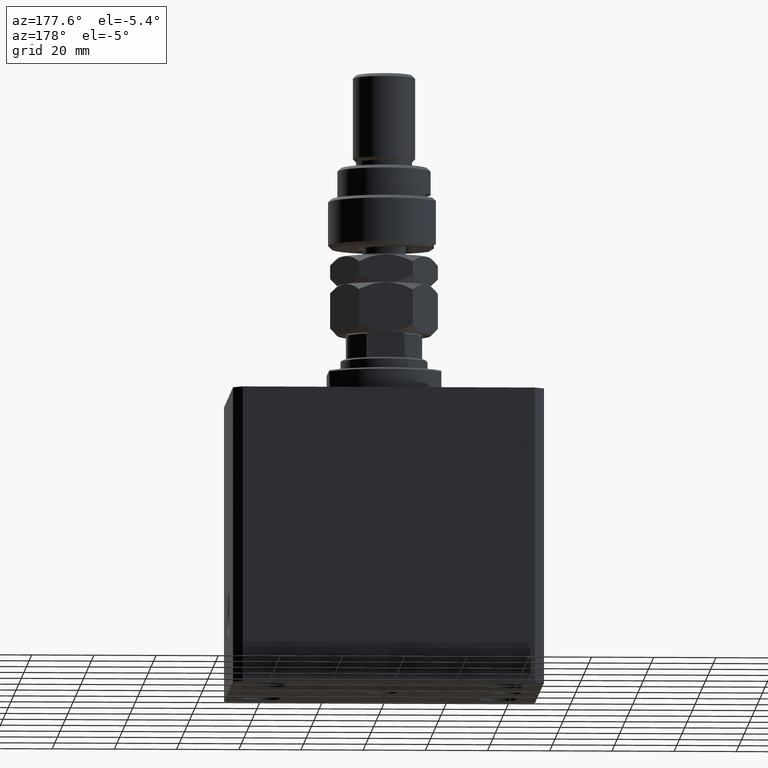
[diagram: clean part render]
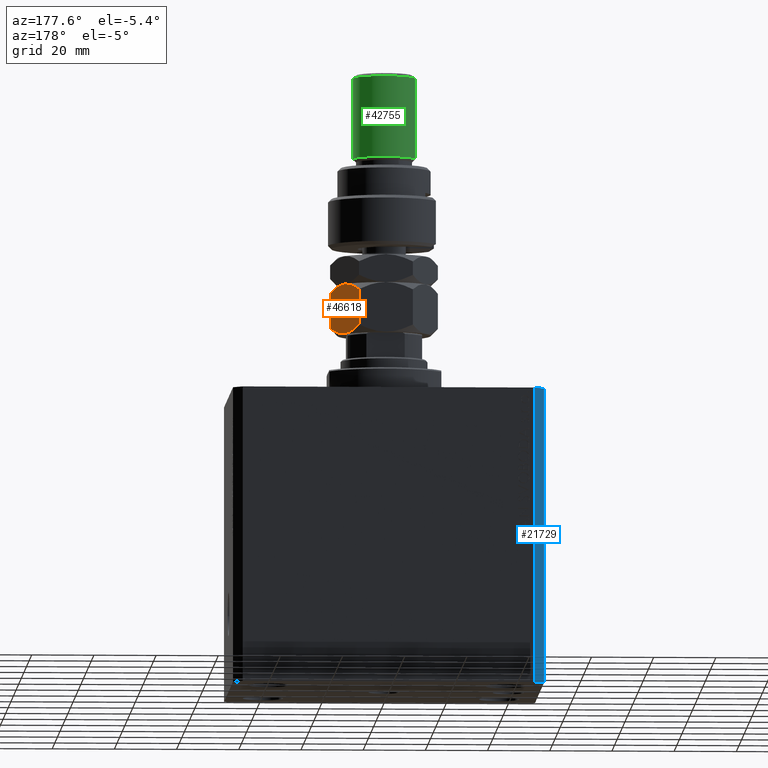
[diagram: same view with three faces highlighted in distinct colors, each labeled with its STEP entity id]
A machine part, auxiliary view with three faces highlighted in distinct colors.
Their STEP definitions:

[orange] entity #46618 — the highlighted planar face has unit normal (-0.866, -0.5, 0).
#1952 = CARTESIAN_POINT ( 'NONE',  ( 10.75222765045651663, 11.11270654730956586, 15.55242859148697576 ) ) ;
#2641 = CARTESIAN_POINT ( 'NONE',  ( 1.176108425306640504, 16.64148155974179843, 1.641481559741787111 ) ) ;
#3009 = CARTESIAN_POINT ( 'NONE',  ( 8.804550678576910983, 12.23719837131869426, -5.031375706690542042E-16 ) ) ;
#3155 = ORIENTED_EDGE ( 'NONE', *, *, #29165, .F. ) ;
#3162 = B_SPLINE_CURVE_WITH_KNOTS ( 'NONE', 3,
 ( #9851, #2641, #10091, #17522, #10560, #32838, #24718, #11027 ),
 .UNSPECIFIED., .F., .F.,
 ( 4, 2, 2, 4 ),
 ( 2.544309033652185071E-07, 0.004488823491893902638, 0.006733108022389172782, 0.008977392552884443794 ),
 .UNSPECIFIED. ) ;
#5113 = VECTOR ( 'NONE', #11393, 1000.000000000000000 ) ;
#5336 = PLANE ( 'NONE',  #12049 ) ;
#5547 = ORIENTED_EDGE ( 'NONE', *, *, #23880, .T. ) ;
#7983 = EDGE_CURVE ( 'NONE', #37139, #24595, #21929, .T. ) ;
#8322 = CARTESIAN_POINT ( 'NONE',  ( 15.00000000000000000, 8.660254037844389075, 13.67949192431123784 ) ) ;
#9404 = LINE ( 'NONE', #26682, #26731 ) ;
#9851 = CARTESIAN_POINT ( 'NONE',  ( 7.621669386706803087E-17, 17.32050807568877104, 2.320508075688761718 ) ) ;
#9860 = ORIENTED_EDGE ( 'NONE', *, *, #7983, .F. ) ;
#10091 = CARTESIAN_POINT ( 'NONE',  ( 2.378834511187503331, 15.94708733029709080, 1.064486067744004671 ) ) ;
#10560 = CARTESIAN_POINT ( 'NONE',  ( 4.881674457977373649, 14.50207201327941320, 0.2838026619462936107 ) ) ;
#11027 = CARTESIAN_POINT ( 'NONE',  ( 7.499999999999997335, 12.99038105676658184, 0.000000000000000000 ) ) ;
#11175 = VERTEX_POINT ( 'NONE', #34547 ) ;
#11393 = DIRECTION ( 'NONE',  ( -0.000000000000000000, -0.000000000000000000, -1.000000000000000000 ) ) ;
#12049 = AXIS2_PLACEMENT_3D ( 'NONE', #41780, #13498, #16857 ) ;
#12365 = CARTESIAN_POINT ( 'NONE',  ( 6.195449321423087241, 13.74356374221446764, 16.00000000000000355 ) ) ;
#13498 = DIRECTION ( 'NONE',  ( -0.4999999999999997780, -0.8660254037844388186, 0.000000000000000000 ) ) ;
#13804 = B_SPLINE_CURVE_WITH_KNOTS ( 'NONE', 3,
 ( #28694, #3009, #17660, #25568, #32521, #35633 ),
 .UNSPECIFIED., .F., .F.,
 ( 4, 2, 4 ),
 ( 0.008977392552884443794, 0.01343452311421656532, 0.01789165367554868685 ),
 .UNSPECIFIED. ) ;
#15962 = CARTESIAN_POINT ( 'NONE',  ( 7.500000000000000000, 12.99038105676657651, 16.00000000000000000 ) ) ;
#16835 = CARTESIAN_POINT ( 'NONE',  ( 7.500000000000000000, 12.99038105676657651, 16.00000000000000000 ) ) ;
#16857 = DIRECTION ( 'NONE',  ( 0.8660254037844387076, -0.4999999999999997224, 0.000000000000000000 ) ) ;
#17277 = EDGE_CURVE ( 'NONE', #11175, #21173, #25795, .T. ) ;
#17522 = CARTESIAN_POINT ( 'NONE',  ( 4.247772349543482484, 14.86805556622358893, 0.4475714085130255149 ) ) ;
#17660 = CARTESIAN_POINT ( 'NONE',  ( 10.08691881950258740, 11.49682277995505331, 0.2303299219392160591 ) ) ;
#18676 = CARTESIAN_POINT ( 'NONE',  ( 7.621669386706803087E-17, 17.32050807568877104, 2.320508075688761718 ) ) ;
#19722 = CARTESIAN_POINT ( 'NONE',  ( 15.00000000000000000, 8.660254037844389075, 13.67949192431123784 ) ) ;
#21173 = VERTEX_POINT ( 'NONE', #18676 ) ;
#21927 = VERTEX_POINT ( 'NONE', #45999 ) ;
#21929 = B_SPLINE_CURVE_WITH_KNOTS ( 'NONE', 3,
 ( #19722, #31697, #27866, #1952, #42223, #27396, #30993, #16835 ),
 .UNSPECIFIED., .F., .F.,
 ( 4, 2, 2, 4 ),
 ( 2.544309033641602453E-07, 0.004488823491893906975, 0.006733108022389177119, 0.008977392552884448998 ),
 .UNSPECIFIED. ) ;
#22268 = EDGE_LOOP ( 'NONE', ( #41375, #23324, #3155, #9860, #5547, #40454 ) ) ;
#22703 = CARTESIAN_POINT ( 'NONE',  ( 15.00000000000000000, 8.660254037844389075, 2.320508075688765715 ) ) ;
#23324 = ORIENTED_EDGE ( 'NONE', *, *, #17277, .F. ) ;
#23880 = EDGE_CURVE ( 'NONE', #37139, #41087, #9404, .T. ) ;
#24262 = EDGE_CURVE ( 'NONE', #21927, #41087, #13804, .T. ) ;
#24595 = VERTEX_POINT ( 'NONE', #28396 ) ;
#24718 = CARTESIAN_POINT ( 'NONE',  ( 6.843123817691747490, 13.36962869744650639, -3.557538378468061917E-16 ) ) ;
#24899 = B_SPLINE_CURVE_WITH_KNOTS ( 'NONE', 3,
 ( #15962, #12365, #30592, #45208, #26999, #41598 ),
 .UNSPECIFIED., .F., .F.,
 ( 4, 2, 4 ),
 ( 0.008977392552884448998, 0.01343452311421656706, 0.01789165367554868338 ),
 .UNSPECIFIED. ) ;
#25568 = CARTESIAN_POINT ( 'NONE',  ( 12.61607045183964715, 10.03661640420386902, 1.060479031370879843 ) ) ;
#25795 = LINE ( 'NONE', #29398, #5113 ) ;
#26682 = CARTESIAN_POINT ( 'NONE',  ( 15.00000000000000000, 8.660254037844389075, 16.00000000000000000 ) ) ;
#26731 = VECTOR ( 'NONE', #27161, 1000.000000000000000 ) ;
#26999 = CARTESIAN_POINT ( 'NONE',  ( 1.174746544192161846, 16.64226784216984356, 14.35773215783022572 ) ) ;
#27161 = DIRECTION ( 'NONE',  ( -0.000000000000000000, -0.000000000000000000, -1.000000000000000000 ) ) ;
#27396 = CARTESIAN_POINT ( 'NONE',  ( 8.823580389329306328, 12.22621156269319798, 15.94046462602529957 ) ) ;
#27866 = CARTESIAN_POINT ( 'NONE',  ( 12.62116548881249756, 10.03367478323606221, 14.93551393225599710 ) ) ;
#28396 = CARTESIAN_POINT ( 'NONE',  ( 7.500000000000000000, 12.99038105676657651, 16.00000000000000000 ) ) ;
#28694 = CARTESIAN_POINT ( 'NONE',  ( 7.499999999999997335, 12.99038105676658184, 0.000000000000000000 ) ) ;
#29165 = EDGE_CURVE ( 'NONE', #24595, #11175, #24899, .T. ) ;
#29398 = CARTESIAN_POINT ( 'NONE',  ( 0.000000000000000000, 17.32050807568877104, 16.00000000000000000 ) ) ;
#30592 = CARTESIAN_POINT ( 'NONE',  ( 4.913081180497409939, 14.48393933357810504, 15.76967007806078946 ) ) ;
#30993 = CARTESIAN_POINT ( 'NONE',  ( 8.156876182308252510, 12.61113341608665728, 16.00000000000000355 ) ) ;
#31017 = FACE_OUTER_BOUND ( 'NONE', #22268, .T. ) ;
#31697 = CARTESIAN_POINT ( 'NONE',  ( 13.82389157469336283, 9.339280553791368789, 14.35851844025821400 ) ) ;
#32521 = CARTESIAN_POINT ( 'NONE',  ( 13.82525345580783949, 9.338494271363313004, 1.642267842169781833 ) ) ;
#32838 = CARTESIAN_POINT ( 'NONE',  ( 6.176419610670692784, 13.75455055083996214, 0.05953537397470201609 ) ) ;
#34547 = CARTESIAN_POINT ( 'NONE',  ( 3.803331551779305683E-16, 17.32050807568877104, 13.67949192431124317 ) ) ;
#35633 = CARTESIAN_POINT ( 'NONE',  ( 15.00000000000000000, 8.660254037844389075, 2.320508075688765715 ) ) ;
#37139 = VERTEX_POINT ( 'NONE', #8322 ) ;
#40454 = ORIENTED_EDGE ( 'NONE', *, *, #24262, .F. ) ;
#41087 = VERTEX_POINT ( 'NONE', #22703 ) ;
#41375 = ORIENTED_EDGE ( 'NONE', *, *, #44993, .F. ) ;
#41598 = CARTESIAN_POINT ( 'NONE',  ( 3.803331551779305683E-16, 17.32050807568877104, 13.67949192431124317 ) ) ;
#41780 = CARTESIAN_POINT ( 'NONE',  ( 15.00000000000000000, 8.660254037844389075, 16.00000000000000000 ) ) ;
#42223 = CARTESIAN_POINT ( 'NONE',  ( 10.11832554202262457, 11.47869010025374514, 15.71619733805371411 ) ) ;
#44993 = EDGE_CURVE ( 'NONE', #21173, #21927, #3162, .T. ) ;
#45208 = CARTESIAN_POINT ( 'NONE',  ( 2.383929548160350631, 15.94414570932928576, 14.93952096862913059 ) ) ;
#45999 = CARTESIAN_POINT ( 'NONE',  ( 7.499999999999997335, 12.99038105676658184, 0.000000000000000000 ) ) ;
#46618 = ADVANCED_FACE ( 'NONE', ( #31017 ), #5336, .F. ) ;

[blue] entity #21729 — the highlighted planar face has unit normal (-0.7071, 0.7071, 0).
#1840 = CARTESIAN_POINT ( 'NONE',  ( -47.00000000000001421, 37.50000000000000000, 0.000000000000000000 ) ) ;
#3258 = LINE ( 'NONE', #28931, #17686 ) ;
#4883 = CARTESIAN_POINT ( 'NONE',  ( -47.00000000000001421, 37.50000000000000000, -95.00000000000000000 ) ) ;
#5633 = ORIENTED_EDGE ( 'NONE', *, *, #23864, .F. ) ;
#5792 = LINE ( 'NONE', #30754, #10636 ) ;
#6744 = AXIS2_PLACEMENT_3D ( 'NONE', #4883, #30085, #16163 ) ;
#7373 = DIRECTION ( 'NONE',  ( -0.7071067811865483499, -0.7071067811865466846, 0.000000000000000000 ) ) ;
#7938 = ORIENTED_EDGE ( 'NONE', *, *, #29019, .F. ) ;
#8638 = ORIENTED_EDGE ( 'NONE', *, *, #44637, .T. ) ;
#8728 = PLANE ( 'NONE',  #6744 ) ;
#8734 = DIRECTION ( 'NONE',  ( 0.000000000000000000, 0.000000000000000000, 1.000000000000000000 ) ) ;
#10636 = VECTOR ( 'NONE', #38639, 1000.000000000000000 ) ;
#12333 = CARTESIAN_POINT ( 'NONE',  ( -50.00000000000001421, 34.50000000000000000, -95.00000000000000000 ) ) ;
#14575 = CARTESIAN_POINT ( 'NONE',  ( -47.00000000000001421, 37.50000000000000000, -95.00000000000000000 ) ) ;
#15455 = FACE_OUTER_BOUND ( 'NONE', #37673, .T. ) ;
#16163 = DIRECTION ( 'NONE',  ( -0.7071067811865483499, -0.7071067811865465735, 0.000000000000000000 ) ) ;
#16527 = VERTEX_POINT ( 'NONE', #21891 ) ;
#17077 = EDGE_CURVE ( 'NONE', #33607, #16527, #21781, .T. ) ;
#17686 = VECTOR ( 'NONE', #29163, 1000.000000000000000 ) ;
#21729 = ADVANCED_FACE ( 'NONE', ( #15455 ), #8728, .T. ) ;
#21781 = LINE ( 'NONE', #14575, #38794 ) ;
#21891 = CARTESIAN_POINT ( 'NONE',  ( -50.00000000000001421, 34.50000000000000000, -95.00000000000000000 ) ) ;
#22412 = LINE ( 'NONE', #12333, #29514 ) ;
#23864 = EDGE_CURVE ( 'NONE', #33607, #37254, #5792, .T. ) ;
#28931 = CARTESIAN_POINT ( 'NONE',  ( -47.00000000000001421, 37.50000000000000000, 0.000000000000000000 ) ) ;
#29019 = EDGE_CURVE ( 'NONE', #37254, #37496, #3258, .T. ) ;
#29163 = DIRECTION ( 'NONE',  ( -0.7071067811865483499, -0.7071067811865466846, 0.000000000000000000 ) ) ;
#29514 = VECTOR ( 'NONE', #8734, 1000.000000000000000 ) ;
#30085 = DIRECTION ( 'NONE',  ( -0.7071067811865466846, 0.7071067811865484609, 0.000000000000000000 ) ) ;
#30754 = CARTESIAN_POINT ( 'NONE',  ( -47.00000000000001421, 37.50000000000000000, -95.00000000000000000 ) ) ;
#32742 = CARTESIAN_POINT ( 'NONE',  ( -50.00000000000001421, 34.50000000000000000, 0.000000000000000000 ) ) ;
#33607 = VERTEX_POINT ( 'NONE', #36234 ) ;
#36234 = CARTESIAN_POINT ( 'NONE',  ( -47.00000000000001421, 37.50000000000000000, -95.00000000000000000 ) ) ;
#37254 = VERTEX_POINT ( 'NONE', #1840 ) ;
#37496 = VERTEX_POINT ( 'NONE', #32742 ) ;
#37673 = EDGE_LOOP ( 'NONE', ( #7938, #5633, #40878, #8638 ) ) ;
#38639 = DIRECTION ( 'NONE',  ( 0.000000000000000000, 0.000000000000000000, 1.000000000000000000 ) ) ;
#38794 = VECTOR ( 'NONE', #7373, 1000.000000000000000 ) ;
#40878 = ORIENTED_EDGE ( 'NONE', *, *, #17077, .T. ) ;
#44637 = EDGE_CURVE ( 'NONE', #16527, #37496, #22412, .T. ) ;

[green] entity #42755 — the highlighted cylindrical surface (edge-blend (fillet) strip) has radius 10 mm, axis along (-0, -0, -1).
#93 = VERTEX_POINT ( 'NONE', #16616 ) ;
#320 = CARTESIAN_POINT ( 'NONE',  ( 0.000000000000000000, 0.000000000000000000, 56.00000000000000711 ) ) ;
#534 = CARTESIAN_POINT ( 'NONE',  ( -10.00000000000000000, 0.000000000000000000, 29.00000000000000711 ) ) ;
#1068 = VECTOR ( 'NONE', #19581, 1000.000000000000000 ) ;
#1739 = CARTESIAN_POINT ( 'NONE',  ( -10.00000000000000000, 0.000000000000000000, 56.00000000000000711 ) ) ;
#2048 = CARTESIAN_POINT ( 'NONE',  ( 10.00000000000000000, 1.224646799147353256E-15, 56.00000000000000711 ) ) ;
#3281 = EDGE_CURVE ( 'NONE', #93, #21926, #42045, .T. ) ;
#3873 = CARTESIAN_POINT ( 'NONE',  ( 10.00000000000000000, 1.224646799147353256E-15, 29.00000000000000711 ) ) ;
#7582 = AXIS2_PLACEMENT_3D ( 'NONE', #22138, #36749, #11345 ) ;
#8911 = EDGE_CURVE ( 'NONE', #15702, #28614, #19366, .T. ) ;
#9220 = EDGE_LOOP ( 'NONE', ( #31547, #14517, #11152, #30334 ) ) ;
#9498 = LINE ( 'NONE', #2048, #1068 ) ;
#11152 = ORIENTED_EDGE ( 'NONE', *, *, #8911, .T. ) ;
#11345 = DIRECTION ( 'NONE',  ( 1.000000000000000000, 0.000000000000000000, 0.000000000000000000 ) ) ;
#14517 = ORIENTED_EDGE ( 'NONE', *, *, #39913, .T. ) ;
#14972 = CYLINDRICAL_SURFACE ( 'NONE', #30236, 10.00000000000000000 ) ;
#15702 = VERTEX_POINT ( 'NONE', #3873 ) ;
#16386 = DIRECTION ( 'NONE',  ( -0.000000000000000000, -0.000000000000000000, -1.000000000000000000 ) ) ;
#16616 = CARTESIAN_POINT ( 'NONE',  ( -10.00000000000000000, 0.000000000000000000, 54.99999999999998579 ) ) ;
#19189 = DIRECTION ( 'NONE',  ( -0.000000000000000000, -0.000000000000000000, 1.000000000000000000 ) ) ;
#19214 = EDGE_CURVE ( 'NONE', #93, #28614, #34592, .T. ) ;
#19366 = CIRCLE ( 'NONE', #23199, 10.00000000000000000 ) ;
#19581 = DIRECTION ( 'NONE',  ( -0.000000000000000000, -0.000000000000000000, -1.000000000000000000 ) ) ;
#21926 = VERTEX_POINT ( 'NONE', #34733 ) ;
#22138 = CARTESIAN_POINT ( 'NONE',  ( 0.000000000000000000, 0.000000000000000000, 54.99999999999998579 ) ) ;
#23199 = AXIS2_PLACEMENT_3D ( 'NONE', #23267, #19189, #44843 ) ;
#23267 = CARTESIAN_POINT ( 'NONE',  ( 0.000000000000000000, 0.000000000000000000, 29.00000000000000711 ) ) ;
#26232 = DIRECTION ( 'NONE',  ( -1.000000000000000000, 0.000000000000000000, 0.000000000000000000 ) ) ;
#26708 = DIRECTION ( 'NONE',  ( -0.000000000000000000, -0.000000000000000000, -1.000000000000000000 ) ) ;
#28614 = VERTEX_POINT ( 'NONE', #534 ) ;
#30070 = FACE_OUTER_BOUND ( 'NONE', #9220, .T. ) ;
#30236 = AXIS2_PLACEMENT_3D ( 'NONE', #320, #26708, #26232 ) ;
#30334 = ORIENTED_EDGE ( 'NONE', *, *, #19214, .F. ) ;
#31547 = ORIENTED_EDGE ( 'NONE', *, *, #3281, .T. ) ;
#34592 = LINE ( 'NONE', #1739, #45759 ) ;
#34733 = CARTESIAN_POINT ( 'NONE',  ( 10.00000000000000000, 1.224646799147353256E-15, 54.99999999999998579 ) ) ;
#36749 = DIRECTION ( 'NONE',  ( 0.000000000000000000, 0.000000000000000000, -1.000000000000000000 ) ) ;
#39913 = EDGE_CURVE ( 'NONE', #21926, #15702, #9498, .T. ) ;
#42045 = CIRCLE ( 'NONE', #7582, 10.00000000000000000 ) ;
#42755 = ADVANCED_FACE ( 'NONE', ( #30070 ), #14972, .T. ) ;
#44843 = DIRECTION ( 'NONE',  ( 1.000000000000000000, 0.000000000000000000, 0.000000000000000000 ) ) ;
#45759 = VECTOR ( 'NONE', #16386, 1000.000000000000000 ) ;